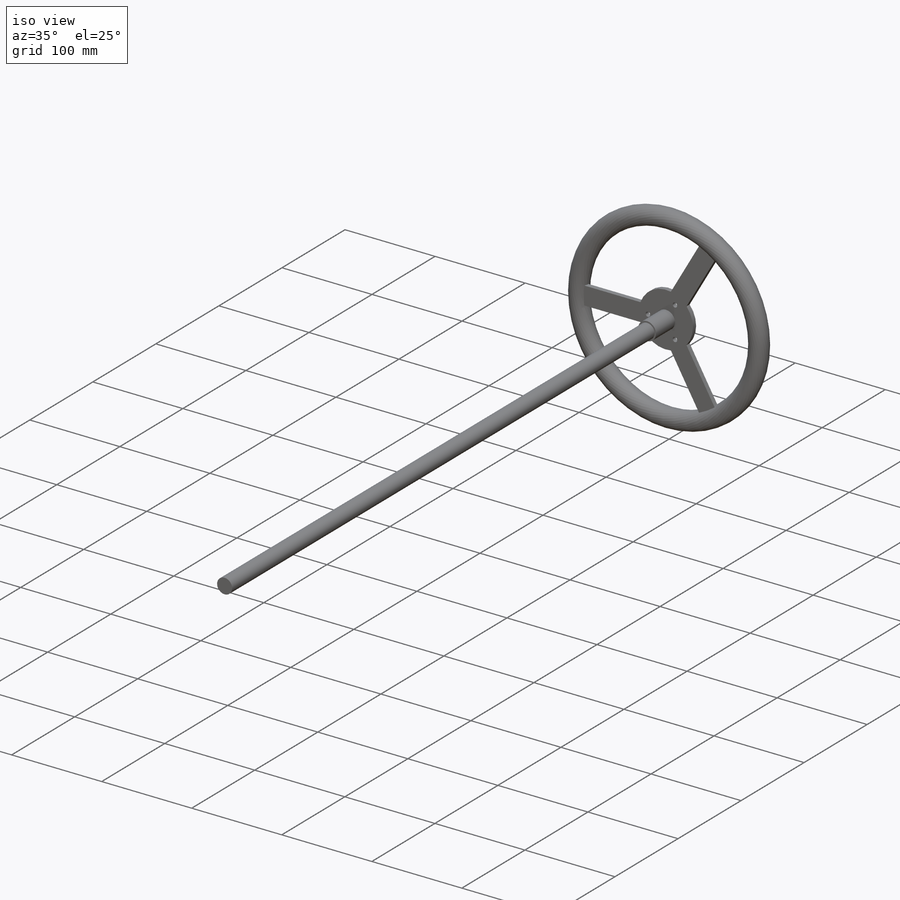
[diagram: iso view]
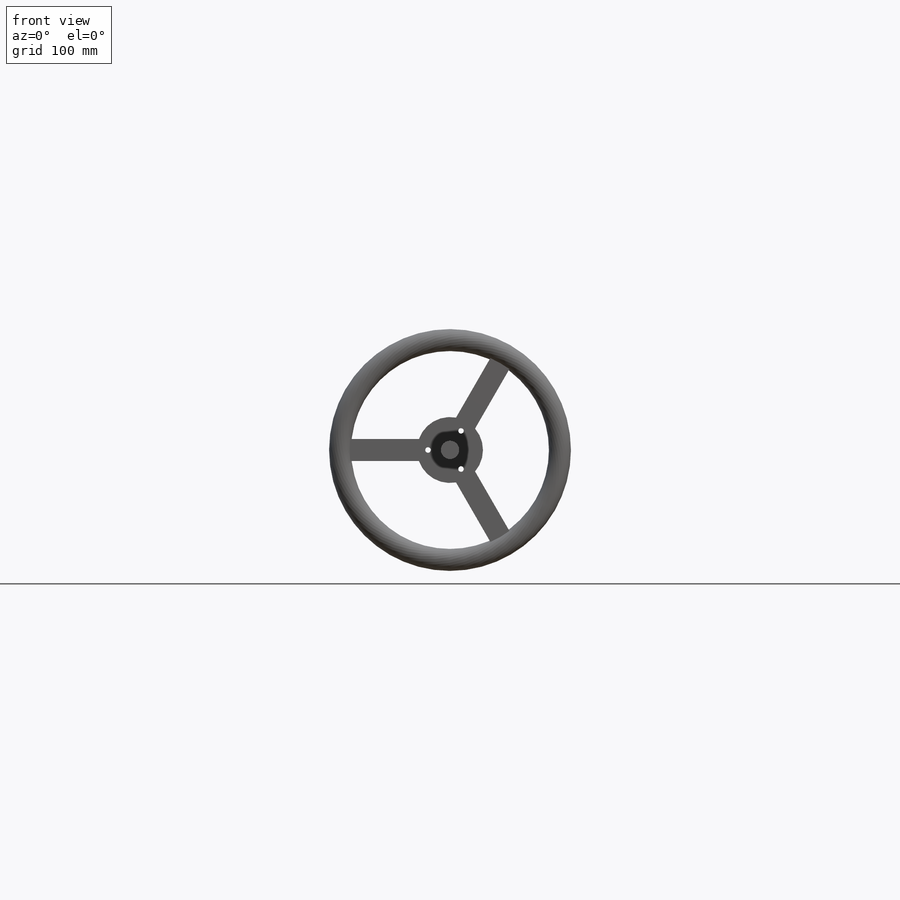
[diagram: front view]
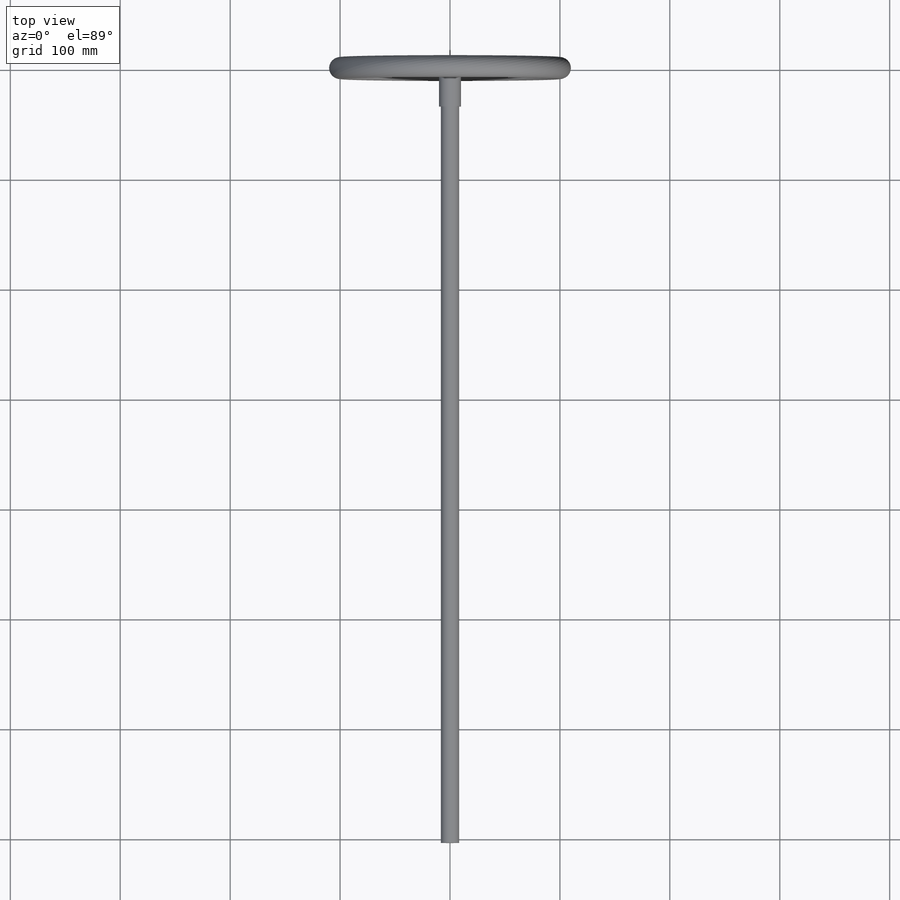
[diagram: top view]
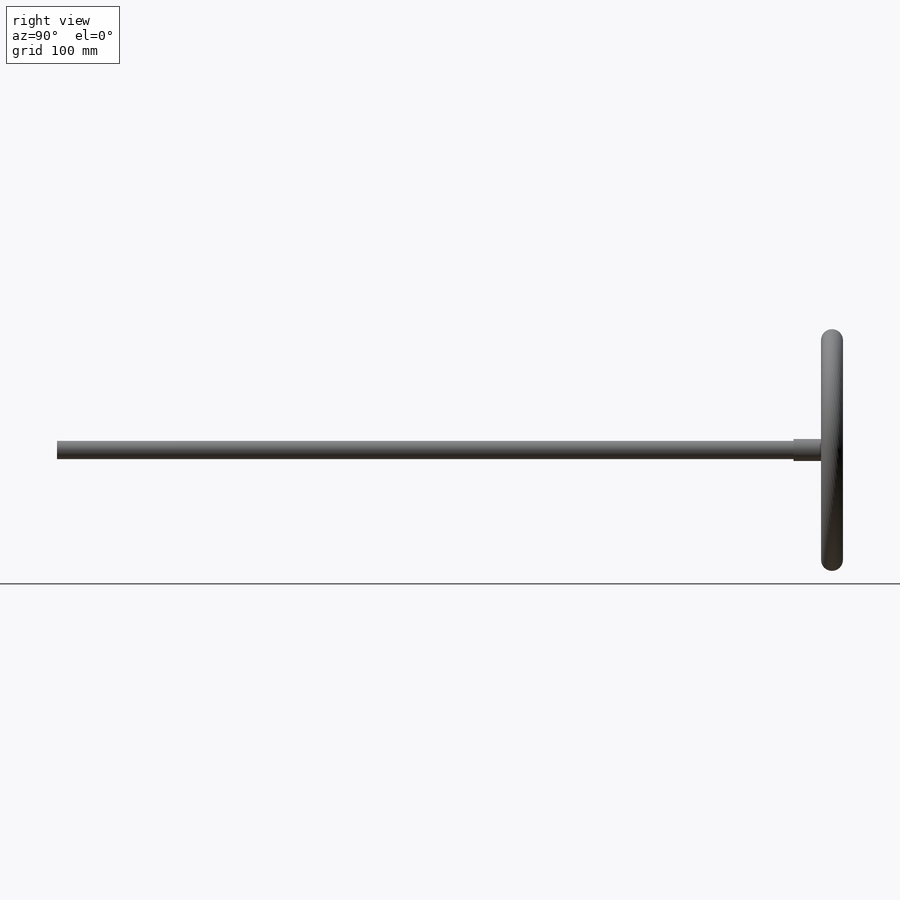
[diagram: right view]
SOLIDWORKS PART (.sldprt)
format: sldprt  version: not decoded by parser v0  size: 235,520 bytes
history: native  units: mm
features: sketch x6, extrude x4, material x1, sweep x1 (+13 scaffold rows collapsed)
feature tree (25):
  scaffold x13  (default folders/planes/origin — collapsed)
  material  "Material <not specified>"
  sketch  "Sketch3"  dims[c1.D1=60.0mm c1.D2=5.0mm c2.D2=3.0]
  extrude  "Boss-Extrude1"  Depth=5mm
  sketch  "Sketch4"  dims[D1=20.0mm]
  extrude  "Boss-Extrude2"  Depth=700mm
  sketch  "Sketch6"  dims[D1=20.0mm]
  extrude  "Boss-Extrude3"  Depth=30mm
  sketch  "Sketch8"  dims[c1.D1=200.0mm c1.D2=~59.61713mm c2.D1=~34.085681mm c2.D3=~71.918858mm c3.D1=10.0mm c3.D2=10.0mm c4.D1=3.0]
  extrude  "Boss-Extrude4"  [1 undecoded]
  sketch  "Sketch10"  dims[D1=200.0mm]
  sketch  "Sketch11"  dims[D1=20.0mm]
  sweep  "Sweep1"
decode coverage: 9 of 11 modeling features carry decoded parameters
note: ~ marks probable driven/reference dimensions
note: 1 parameter value undecoded
note: suppression state not decoded; provenance and decode notes live in map.json
